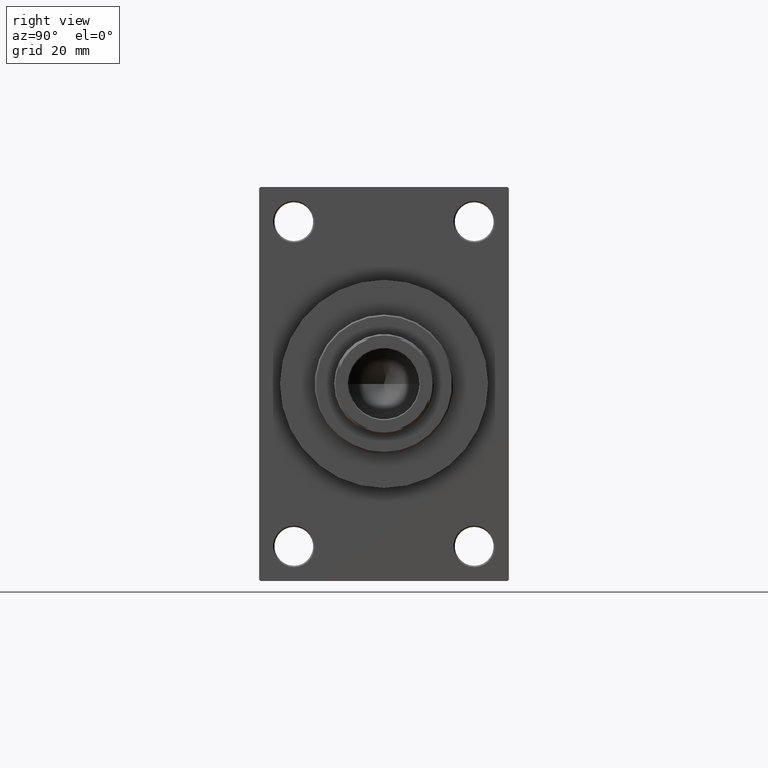
[diagram: clean part render]
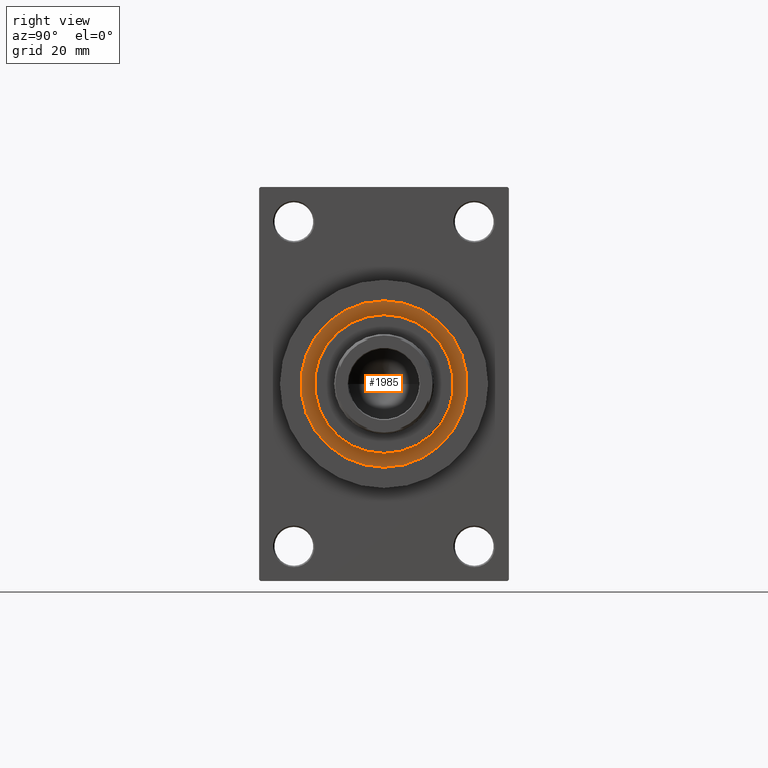
[diagram: same view with one face highlighted and labeled with its STEP entity id]
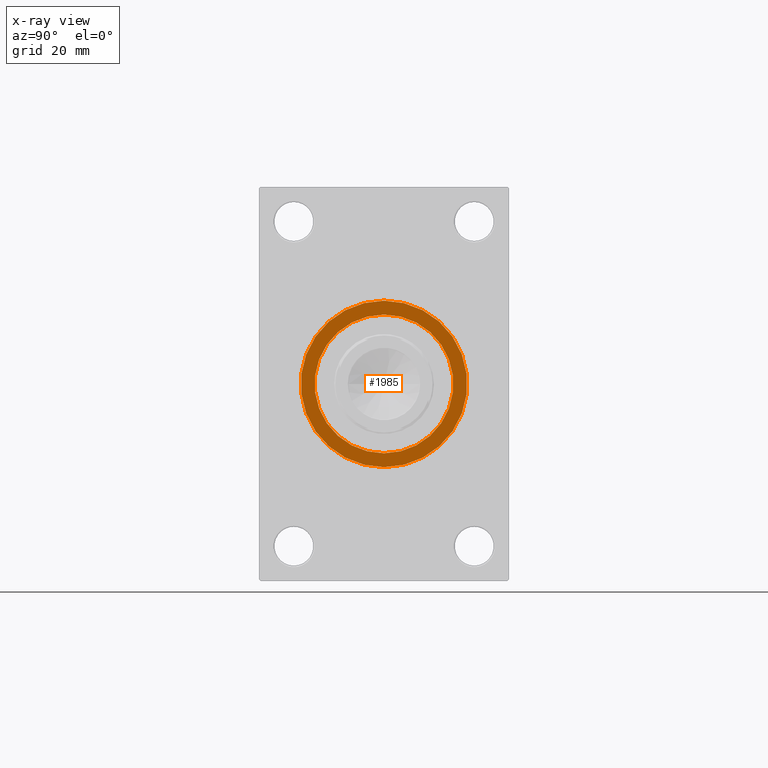
[diagram: x-ray of the same camera — body ghosted, the highlighted face saturated]
A machine part, right view. The second image highlights one B-rep face of the part: STEP entity #1985.
The next image is the same camera in x-ray: the body ghosted, the highlighted face saturated — about 0% of this face is hidden behind the body in this view.
In plain terms, the highlighted planar face has unit normal (1, -0, -0).
Its self-contained STEP definition (entity closure, byte-faithful):
#205 = DIRECTION ( 'NONE',  ( 1.000000000000000000, 0.000000000000000000, 0.000000000000000000 ) ) ;
#1264 = ORIENTED_EDGE ( 'NONE', *, *, #4607, .T. ) ;
#1985 = ADVANCED_FACE ( 'NONE', ( #3535, #29309 ), #10923, .T. ) ;
#2133 = AXIS2_PLACEMENT_3D ( 'NONE', #21158, #24042, #12827 ) ;
#2385 = VERTEX_POINT ( 'NONE', #24483 ) ;
#3162 = VERTEX_POINT ( 'NONE', #43181 ) ;
#3535 = FACE_BOUND ( 'NONE', #21285, .T. ) ;
#4434 = AXIS2_PLACEMENT_3D ( 'NONE', #18900, #27013, #8168 ) ;
#4607 = EDGE_CURVE ( 'NONE', #3162, #2385, #42538, .T. ) ;
#4819 = EDGE_CURVE ( 'NONE', #30820, #8317, #22697, .T. ) ;
#5002 = EDGE_CURVE ( 'NONE', #8317, #30820, #19670, .T. ) ;
#5126 = CARTESIAN_POINT ( 'NONE',  ( 25.00000000000000000, 3.061616997868383043E-15, 43.25999999999999801 ) ) ;
#5187 = AXIS2_PLACEMENT_3D ( 'NONE', #7589, #32653, #205 ) ;
#7589 = CARTESIAN_POINT ( 'NONE',  ( 0.000000000000000000, 0.000000000000000000, 43.25999999999999801 ) ) ;
#8168 = DIRECTION ( 'NONE',  ( 1.000000000000000000, 0.000000000000000000, 0.000000000000000000 ) ) ;
#8317 = VERTEX_POINT ( 'NONE', #5126 ) ;
#9055 = DIRECTION ( 'NONE',  ( 1.000000000000000000, 0.000000000000000000, 0.000000000000000000 ) ) ;
#10220 = DIRECTION ( 'NONE',  ( 1.000000000000000000, 0.000000000000000000, -0.000000000000000000 ) ) ;
#10609 = ORIENTED_EDGE ( 'NONE', *, *, #4819, .F. ) ;
#10923 = PLANE ( 'NONE',  #32909 ) ;
#11161 = CARTESIAN_POINT ( 'NONE',  ( 0.000000000000000000, 0.000000000000000000, 43.25999999999999801 ) ) ;
#12827 = DIRECTION ( 'NONE',  ( 1.000000000000000000, 0.000000000000000000, 0.000000000000000000 ) ) ;
#18900 = CARTESIAN_POINT ( 'NONE',  ( 0.000000000000000000, 0.000000000000000000, 43.25999999999999801 ) ) ;
#19670 = CIRCLE ( 'NONE', #2133, 25.00000000000000000 ) ;
#21158 = CARTESIAN_POINT ( 'NONE',  ( 0.000000000000000000, 0.000000000000000000, 43.25999999999999801 ) ) ;
#21285 = EDGE_LOOP ( 'NONE', ( #10609, #35095 ) ) ;
#22697 = CIRCLE ( 'NONE', #5187, 25.00000000000000000 ) ;
#23255 = AXIS2_PLACEMENT_3D ( 'NONE', #38876, #41768, #9055 ) ;
#23688 = ORIENTED_EDGE ( 'NONE', *, *, #44122, .T. ) ;
#24042 = DIRECTION ( 'NONE',  ( 0.000000000000000000, 0.000000000000000000, 1.000000000000000000 ) ) ;
#24483 = CARTESIAN_POINT ( 'NONE',  ( -30.00000000000000000, 0.000000000000000000, 43.25999999999999801 ) ) ;
#24785 = CIRCLE ( 'NONE', #23255, 30.00000000000000000 ) ;
#27013 = DIRECTION ( 'NONE',  ( 0.000000000000000000, 0.000000000000000000, 1.000000000000000000 ) ) ;
#29309 = FACE_OUTER_BOUND ( 'NONE', #46441, .T. ) ;
#30820 = VERTEX_POINT ( 'NONE', #37182 ) ;
#32175 = DIRECTION ( 'NONE',  ( 0.000000000000000000, 0.000000000000000000, 1.000000000000000000 ) ) ;
#32653 = DIRECTION ( 'NONE',  ( 0.000000000000000000, 0.000000000000000000, 1.000000000000000000 ) ) ;
#32909 = AXIS2_PLACEMENT_3D ( 'NONE', #11161, #32175, #10220 ) ;
#35095 = ORIENTED_EDGE ( 'NONE', *, *, #5002, .F. ) ;
#37182 = CARTESIAN_POINT ( 'NONE',  ( -25.00000000000000000, 0.000000000000000000, 43.25999999999999801 ) ) ;
#38876 = CARTESIAN_POINT ( 'NONE',  ( 0.000000000000000000, 0.000000000000000000, 43.25999999999999801 ) ) ;
#41768 = DIRECTION ( 'NONE',  ( 0.000000000000000000, 0.000000000000000000, 1.000000000000000000 ) ) ;
#42538 = CIRCLE ( 'NONE', #4434, 30.00000000000000000 ) ;
#43181 = CARTESIAN_POINT ( 'NONE',  ( 30.00000000000000000, 3.673940397442059178E-15, 43.25999999999999801 ) ) ;
#44122 = EDGE_CURVE ( 'NONE', #2385, #3162, #24785, .T. ) ;
#46441 = EDGE_LOOP ( 'NONE', ( #23688, #1264 ) ) ;